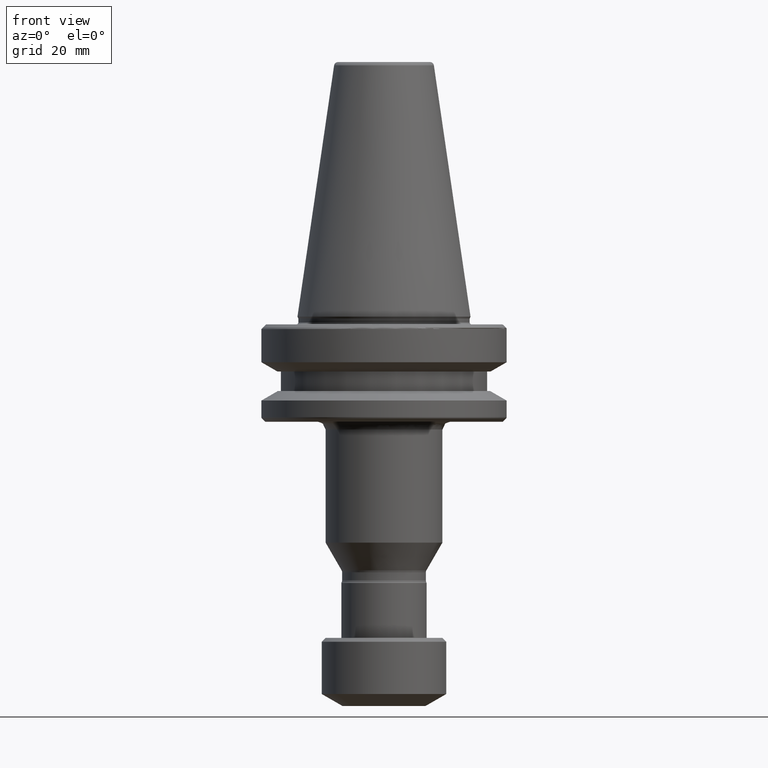
[diagram: clean part render]
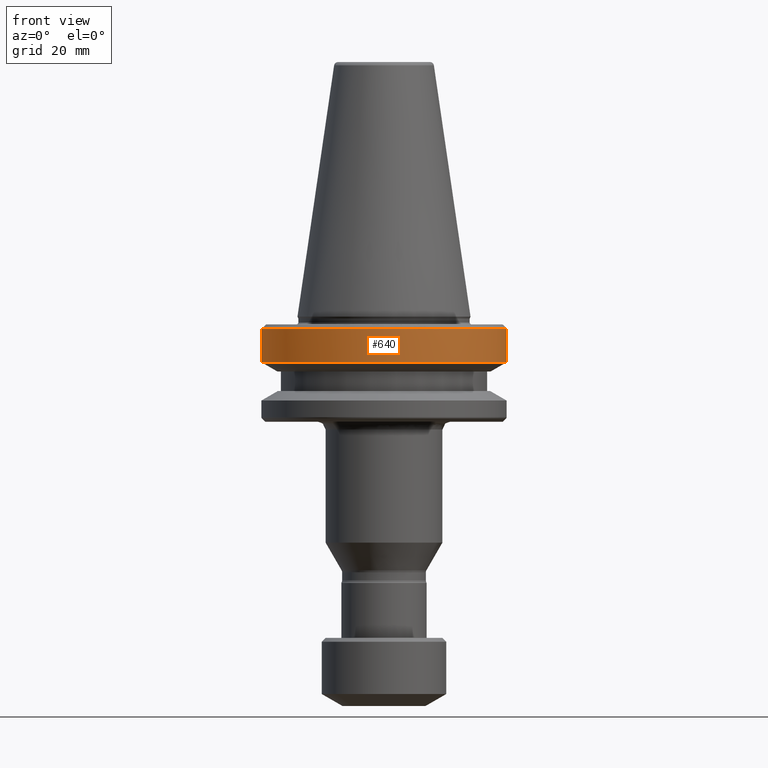
[diagram: same view with one face highlighted and labeled with its STEP entity id]
A machine part, front view. The second image highlights one B-rep face of the part: STEP entity #640.
In plain terms, the highlighted cylindrical surface (partial cylindrical patch) has radius 31.5 mm, axis along (-0, 0, 1).
Its self-contained STEP definition (entity closure, byte-faithful):
#185 = CIRCLE ( 'NONE', #488, 31.50000000056924100 ) ;
#287 = CARTESIAN_POINT ( 'NONE',  ( 77.98158695652918500, 103.8751982920319800, 86.56108534803942700 ) ) ;
#337 = AXIS2_PLACEMENT_3D ( 'NONE', #3512, #3478, #1518 ) ;
#387 = VECTOR ( 'NONE', #3492, 1000.000000000000000 ) ;
#406 = LINE ( 'NONE', #3150, #387 ) ;
#488 = AXIS2_PLACEMENT_3D ( 'NONE', #287, #2433, #579 ) ;
#579 = DIRECTION ( 'NONE',  ( -1.000000000000000000, 0.0000000000000000000, 0.0000000000000000000 ) ) ;
#633 = CIRCLE ( 'NONE', #3116, 31.50000000000000000 ) ;
#640 = ADVANCED_FACE ( 'NONE', ( #982 ), #995, .T. ) ;
#784 = CIRCLE ( 'NONE', #337, 31.50000000056924800 ) ;
#824 = CIRCLE ( 'NONE', #3731, 31.49999999963487700 ) ;
#910 = LINE ( 'NONE', #1366, #1417 ) ;
#982 = FACE_OUTER_BOUND ( 'NONE', #3561, .T. ) ;
#995 = CYLINDRICAL_SURFACE ( 'NONE', #3586, 31.50000000000000000 ) ;
#1006 = EDGE_CURVE ( 'NONE', #1252, #2858, #824, .T. ) ;
#1187 = EDGE_CURVE ( 'NONE', #2824, #2858, #784, .T. ) ;
#1252 = VERTEX_POINT ( 'NONE', #2483 ) ;
#1265 = CARTESIAN_POINT ( 'NONE',  ( 109.4815869570984100, 103.8751982920319800, 86.56108534803942700 ) ) ;
#1270 = DIRECTION ( 'NONE',  ( -2.753529326947312600E-017, 0.0000000000000000000, 1.000000000000000000 ) ) ;
#1366 = CARTESIAN_POINT ( 'NONE',  ( 46.48158695652917800, 103.8751982920319800, 86.66717924420468900 ) ) ;
#1394 = VERTEX_POINT ( 'NONE', #1265 ) ;
#1417 = VECTOR ( 'NONE', #1951, 1000.000000000000000 ) ;
#1482 = VERTEX_POINT ( 'NONE', #3317 ) ;
#1518 = DIRECTION ( 'NONE',  ( -1.000000000000000000, 0.0000000000000000000, 0.0000000000000000000 ) ) ;
#1561 = DIRECTION ( 'NONE',  ( 1.000000000000000000, 0.0000000000000000000, 0.0000000000000000000 ) ) ;
#1654 = EDGE_CURVE ( 'NONE', #2824, #1482, #633, .T. ) ;
#1717 = DIRECTION ( 'NONE',  ( 1.000000000000000000, 0.0000000000000000000, 0.0000000000000000000 ) ) ;
#1847 = VERTEX_POINT ( 'NONE', #2214 ) ;
#1951 = DIRECTION ( 'NONE',  ( -2.753529326947312600E-017, 0.0000000000000000000, 1.000000000000000000 ) ) ;
#2008 = CARTESIAN_POINT ( 'NONE',  ( 77.98158695622785800, 103.8751982937190800, 95.10135181319854800 ) ) ;
#2035 = CARTESIAN_POINT ( 'NONE',  ( 86.69904032949124000, 73.60547733705405400, 95.10135181146311800 ) ) ;
#2086 = DIRECTION ( 'NONE',  ( -2.753529326947312600E-017, 0.0000000000000000000, 1.000000000000000000 ) ) ;
#2214 = CARTESIAN_POINT ( 'NONE',  ( 46.48158695595994100, 103.8751982920319800, 86.56108534803942700 ) ) ;
#2265 = EDGE_CURVE ( 'NONE', #1394, #1482, #406, .T. ) ;
#2400 = CARTESIAN_POINT ( 'NONE',  ( 77.98158695652918500, 103.8751982920319800, 86.66717924420468900 ) ) ;
#2433 = DIRECTION ( 'NONE',  ( -0.0000000000000000000, -0.0000000000000000000, -1.000000000000000000 ) ) ;
#2483 = CARTESIAN_POINT ( 'NONE',  ( 46.48158695652917800, 103.8751982920319800, 95.10135181319854800 ) ) ;
#2815 = ORIENTED_EDGE ( 'NONE', *, *, #2265, .T. ) ;
#2824 = VERTEX_POINT ( 'NONE', #2035 ) ;
#2858 = VERTEX_POINT ( 'NONE', #3661 ) ;
#2895 = ORIENTED_EDGE ( 'NONE', *, *, #2918, .F. ) ;
#2918 = EDGE_CURVE ( 'NONE', #1394, #1847, #185, .T. ) ;
#3110 = ORIENTED_EDGE ( 'NONE', *, *, #1187, .T. ) ;
#3116 = AXIS2_PLACEMENT_3D ( 'NONE', #3814, #2086, #1561 ) ;
#3150 = CARTESIAN_POINT ( 'NONE',  ( 109.4815869565291800, 103.8751982920319800, 86.66717924420468900 ) ) ;
#3217 = ORIENTED_EDGE ( 'NONE', *, *, #3614, .F. ) ;
#3228 = ORIENTED_EDGE ( 'NONE', *, *, #1654, .F. ) ;
#3317 = CARTESIAN_POINT ( 'NONE',  ( 109.4815869565291800, 103.8751982941855700, 95.10135181253802700 ) ) ;
#3478 = DIRECTION ( 'NONE',  ( -0.0000000000000000000, -0.0000000000000000000, -1.000000000000000000 ) ) ;
#3492 = DIRECTION ( 'NONE',  ( -2.753529326947312600E-017, 0.0000000000000000000, 1.000000000000000000 ) ) ;
#3512 = CARTESIAN_POINT ( 'NONE',  ( 77.98158695652918500, 103.8751982920319800, 95.10135181212467600 ) ) ;
#3543 = ORIENTED_EDGE ( 'NONE', *, *, #1006, .F. ) ;
#3561 = EDGE_LOOP ( 'NONE', ( #3217, #2895, #2815, #3228, #3110, #3543 ) ) ;
#3586 = AXIS2_PLACEMENT_3D ( 'NONE', #2400, #1270, #1717 ) ;
#3614 = EDGE_CURVE ( 'NONE', #1847, #1252, #910, .T. ) ;
#3661 = CARTESIAN_POINT ( 'NONE',  ( 69.38214979977969700, 73.57173841328251700, 95.10135181212467600 ) ) ;
#3731 = AXIS2_PLACEMENT_3D ( 'NONE', #2008, #3871, #3939 ) ;
#3814 = CARTESIAN_POINT ( 'NONE',  ( 77.98158695652918500, 103.8751982920319800, 95.10135181220469700 ) ) ;
#3871 = DIRECTION ( 'NONE',  ( 0.0000000000000000000, 0.0000000000000000000, 1.000000000000000000 ) ) ;
#3939 = DIRECTION ( 'NONE',  ( 1.000000000000000000, 0.0000000000000000000, 0.0000000000000000000 ) ) ;